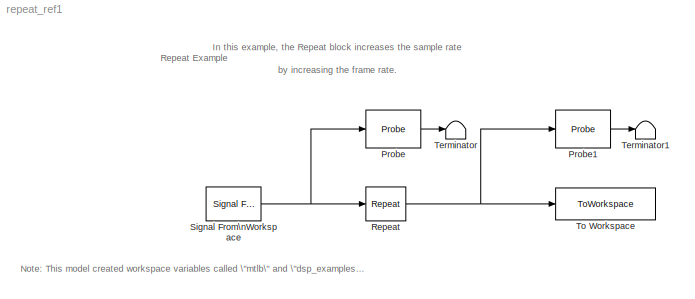
MODEL repeat_ref1
KIND model
CONFIG AbsTol = auto
CONFIG FixedStep = auto
CONFIG MaxStep = auto
CONFIG MinStep = auto
CONFIG PostLoadFcn = set_param(gcs,'SimulationCommand','Update')
CONFIG PreLoadFcn = load mtlb
CONFIG RelTol = 1e-3
CONFIG Solver = FixedStepDiscrete
CONFIG SolverMode = Auto
CONFIG StartTime = 0.0
CONFIG StopTime = 5
BLOCK [Probe] Probe
  Ports = [1, 1]
  ProbeComplexSignal = off
  ProbeSampleTime = on
  ProbeSignalDimensions = off
  ProbeWidth = off
BLOCK [Probe] Probe1
  Ports = [1, 1]
  ProbeComplexSignal = off
  ProbeSampleTime = on
  ProbeSignalDimensions = off
  ProbeWidth = off
BLOCK [Reference] Repeat  REF=dspsigops/Repeat
  N = 4
  Ports = [1, 1]
  SourceBlock = dspsigops/Repeat
  SourceType = Repeat
  ic = 0
  mode = Maintain input frame size
BLOCK [Reference] Signal From\nWorkspace  REF=dspsrcs3/Signal From\nWorkspace
  OutputAfterFinalValue = Setting To Zero
  Ports = [0, 1]
  SourceBlock = dspsrcs3/Signal From\nWorkspace
  SourceType = Signal From Workspace
  Ts = 1/64
  X = mtlb
  nsamps = 64
BLOCK [Terminator] Terminator
BLOCK [Terminator] Terminator1
BLOCK [ToWorkspace] To Workspace
  Decimation = 1
  MaxDataPoints = inf
  SampleTime = -1
  SaveFormat = Array
  VariableName = dsp_examples_yout
LINE Probe1:1 -> Terminator1:1
LINE Probe:1 -> Terminator:1
NET Repeat:1 -> Probe1:1, To Workspace:1
NET Signal From\nWorkspace:1 -> Probe:1, Repeat:1
note: NET lines group one-source signal fan-out (src -> all destinations, sorted); 1:1 wires keep LINE
